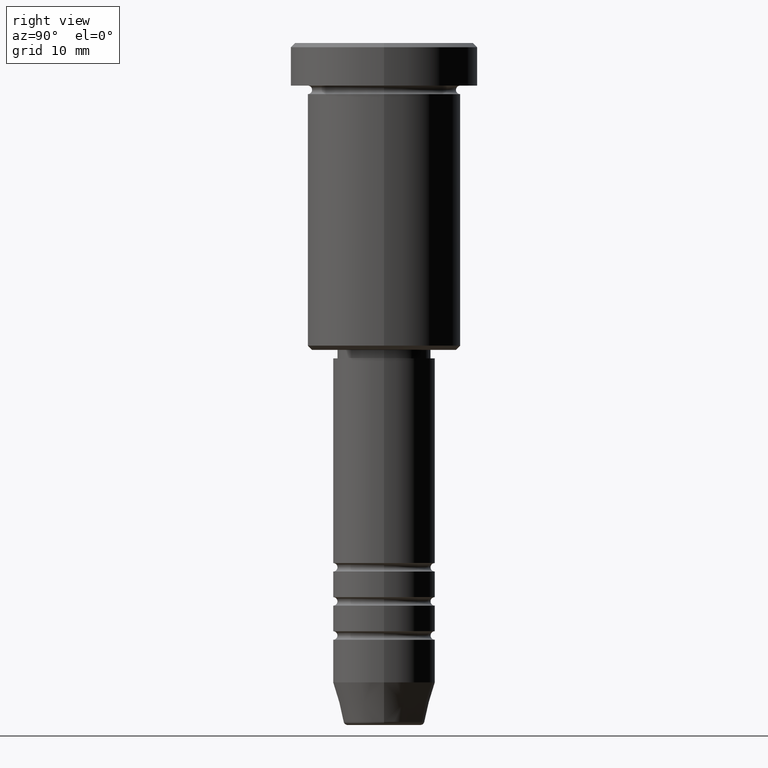
[diagram: clean part render]
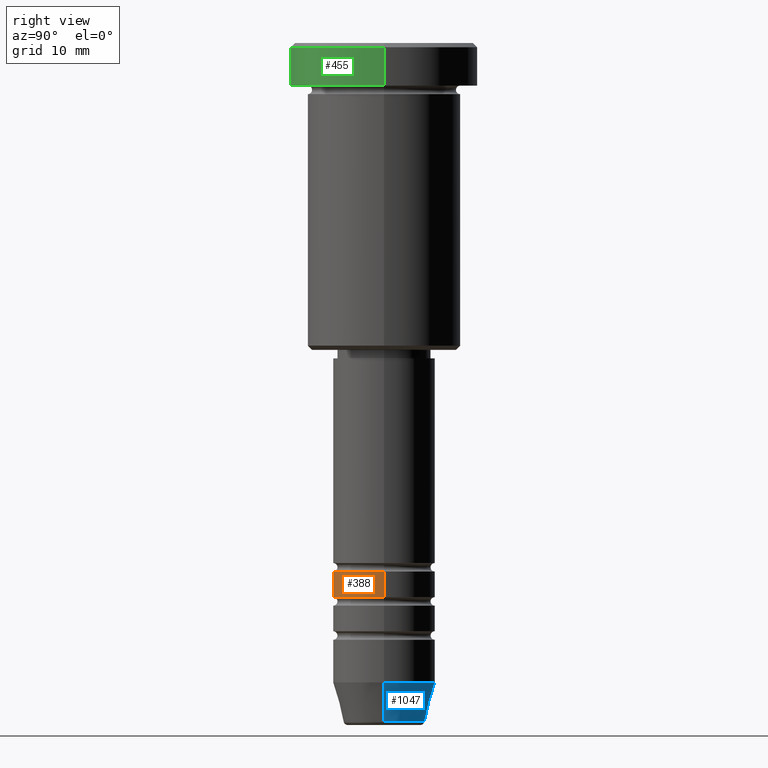
[diagram: same view with three faces highlighted in distinct colors, each labeled with its STEP entity id]
A machine part, right view with three faces highlighted in distinct colors.
Their STEP definitions:

[orange] entity #388 — the highlighted cylindrical surface (partial cylindrical patch) has radius 6 mm, axis along (-0, -0, 1).
#24 = DIRECTION ( 'NONE',  ( 1.000000000000000000, 0.000000000000000000, 0.000000000000000000 ) ) ;
#36 = EDGE_CURVE ( 'NONE', #151, #428, #807, .T. ) ;
#47 = VECTOR ( 'NONE', #271, 1000.000000000000000 ) ;
#66 = VECTOR ( 'NONE', #141, 1000.000000000000000 ) ;
#80 = ORIENTED_EDGE ( 'NONE', *, *, #279, .F. ) ;
#141 = DIRECTION ( 'NONE',  ( -0.000000000000000000, -0.000000000000000000, 1.000000000000000000 ) ) ;
#149 = FACE_OUTER_BOUND ( 'NONE', #413, .T. ) ;
#151 = VERTEX_POINT ( 'NONE', #485 ) ;
#201 = CARTESIAN_POINT ( 'NONE',  ( -6.000000000000001776, 7.347880794884121708E-16, -65.00000000000000000 ) ) ;
#243 = DIRECTION ( 'NONE',  ( -0.000000000000000000, -0.000000000000000000, 1.000000000000000000 ) ) ;
#271 = DIRECTION ( 'NONE',  ( -0.000000000000000000, -0.000000000000000000, 1.000000000000000000 ) ) ;
#276 = CARTESIAN_POINT ( 'NONE',  ( 6.000000000000000000, 0.000000000000000000, 0.000000000000000000 ) ) ;
#279 = EDGE_CURVE ( 'NONE', #1032, #151, #424, .T. ) ;
#309 = CARTESIAN_POINT ( 'NONE',  ( -6.000000000000000000, 7.347880794884119736E-16, 0.000000000000000000 ) ) ;
#310 = CARTESIAN_POINT ( 'NONE',  ( 0.000000000000000000, 0.000000000000000000, -62.00000000000000711 ) ) ;
#337 = CIRCLE ( 'NONE', #637, 6.000000000000001776 ) ;
#358 = CARTESIAN_POINT ( 'NONE',  ( 0.000000000000000000, 0.000000000000000000, -65.00000000000000000 ) ) ;
#388 = ADVANCED_FACE ( 'NONE', ( #149 ), #694, .T. ) ;
#413 = EDGE_LOOP ( 'NONE', ( #80, #789, #736, #783 ) ) ;
#424 = LINE ( 'NONE', #309, #66 ) ;
#428 = VERTEX_POINT ( 'NONE', #602 ) ;
#443 = EDGE_CURVE ( 'NONE', #1032, #645, #337, .T. ) ;
#458 = LINE ( 'NONE', #276, #47 ) ;
#485 = CARTESIAN_POINT ( 'NONE',  ( -5.999999999999999112, 7.347880794884118750E-16, -62.00000000000000711 ) ) ;
#602 = CARTESIAN_POINT ( 'NONE',  ( 5.999999999999999112, 0.000000000000000000, -62.00000000000000711 ) ) ;
#627 = DIRECTION ( 'NONE',  ( -0.000000000000000000, -0.000000000000000000, 1.000000000000000000 ) ) ;
#637 = AXIS2_PLACEMENT_3D ( 'NONE', #358, #627, #787 ) ;
#645 = VERTEX_POINT ( 'NONE', #824 ) ;
#694 = CYLINDRICAL_SURFACE ( 'NONE', #716, 6.000000000000000000 ) ;
#709 = CARTESIAN_POINT ( 'NONE',  ( 0.000000000000000000, 0.000000000000000000, 0.000000000000000000 ) ) ;
#716 = AXIS2_PLACEMENT_3D ( 'NONE', #709, #243, #974 ) ;
#736 = ORIENTED_EDGE ( 'NONE', *, *, #1038, .T. ) ;
#749 = AXIS2_PLACEMENT_3D ( 'NONE', #310, #938, #24 ) ;
#783 = ORIENTED_EDGE ( 'NONE', *, *, #36, .F. ) ;
#787 = DIRECTION ( 'NONE',  ( 1.000000000000000000, 0.000000000000000000, 0.000000000000000000 ) ) ;
#789 = ORIENTED_EDGE ( 'NONE', *, *, #443, .T. ) ;
#807 = CIRCLE ( 'NONE', #749, 5.999999999999999112 ) ;
#824 = CARTESIAN_POINT ( 'NONE',  ( 6.000000000000001776, 0.000000000000000000, -65.00000000000000000 ) ) ;
#938 = DIRECTION ( 'NONE',  ( -0.000000000000000000, -0.000000000000000000, 1.000000000000000000 ) ) ;
#974 = DIRECTION ( 'NONE',  ( 1.000000000000000000, 0.000000000000000000, 0.000000000000000000 ) ) ;
#1032 = VERTEX_POINT ( 'NONE', #201 ) ;
#1038 = EDGE_CURVE ( 'NONE', #645, #428, #458, .T. ) ;

[blue] entity #1047 — the highlighted conical surface has half-angle 15 deg.
#38 = DIRECTION ( 'NONE',  ( -0.2588190451025213501, 3.169619151431772337E-17, 0.9659258262890680902 ) ) ;
#43 = CARTESIAN_POINT ( 'NONE',  ( 6.000000000000000000, 0.000000000000000000, -75.00000000000001421 ) ) ;
#45 = VECTOR ( 'NONE', #38, 1000.000000000000000 ) ;
#76 = EDGE_LOOP ( 'NONE', ( #1053, #599, #335, #1016 ) ) ;
#87 = CONICAL_SURFACE ( 'NONE', #928, 6.000000000000000000, 0.2617993877991500740 ) ;
#125 = CARTESIAN_POINT ( 'NONE',  ( -6.000000000000000000, 7.347880794884119736E-16, -75.00000000000001421 ) ) ;
#143 = VERTEX_POINT ( 'NONE', #125 ) ;
#223 = CARTESIAN_POINT ( 'NONE',  ( 0.000000000000000000, 0.000000000000000000, -75.00000000000001421 ) ) ;
#233 = DIRECTION ( 'NONE',  ( -0.000000000000000000, -0.000000000000000000, 1.000000000000000000 ) ) ;
#250 = VERTEX_POINT ( 'NONE', #43 ) ;
#254 = VERTEX_POINT ( 'NONE', #1040 ) ;
#318 = EDGE_CURVE ( 'NONE', #254, #250, #859, .T. ) ;
#335 = ORIENTED_EDGE ( 'NONE', *, *, #780, .F. ) ;
#374 = EDGE_CURVE ( 'NONE', #535, #143, #483, .T. ) ;
#382 = DIRECTION ( 'NONE',  ( 1.000000000000000000, 0.000000000000000000, 0.000000000000000000 ) ) ;
#399 = CARTESIAN_POINT ( 'NONE',  ( -6.000000000000000000, 7.347880794884119736E-16, -75.00000000000001421 ) ) ;
#434 = CIRCLE ( 'NONE', #585, 6.000000000000000000 ) ;
#483 = LINE ( 'NONE', #399, #45 ) ;
#528 = EDGE_CURVE ( 'NONE', #254, #535, #964, .T. ) ;
#535 = VERTEX_POINT ( 'NONE', #968 ) ;
#585 = AXIS2_PLACEMENT_3D ( 'NONE', #223, #233, #1126 ) ;
#595 = CARTESIAN_POINT ( 'NONE',  ( 6.000000000000000000, 0.000000000000000000, -75.00000000000001421 ) ) ;
#599 = ORIENTED_EDGE ( 'NONE', *, *, #374, .T. ) ;
#622 = VECTOR ( 'NONE', #868, 1000.000000000000000 ) ;
#650 = DIRECTION ( 'NONE',  ( -0.000000000000000000, -0.000000000000000000, 1.000000000000000000 ) ) ;
#688 = CARTESIAN_POINT ( 'NONE',  ( 0.000000000000000000, 0.000000000000000000, -79.62940952255127058 ) ) ;
#780 = EDGE_CURVE ( 'NONE', #250, #143, #434, .T. ) ;
#795 = DIRECTION ( 'NONE',  ( -0.000000000000000000, -0.000000000000000000, 1.000000000000000000 ) ) ;
#859 = LINE ( 'NONE', #595, #622 ) ;
#868 = DIRECTION ( 'NONE',  ( 0.2588190451025213501, 0.000000000000000000, 0.9659258262890680902 ) ) ;
#928 = AXIS2_PLACEMENT_3D ( 'NONE', #1171, #650, #382 ) ;
#964 = CIRCLE ( 'NONE', #1112, 4.759553456999440435 ) ;
#968 = CARTESIAN_POINT ( 'NONE',  ( -4.759553456999440435, 6.588326350684603250E-16, -79.62940952255127058 ) ) ;
#1016 = ORIENTED_EDGE ( 'NONE', *, *, #318, .F. ) ;
#1040 = CARTESIAN_POINT ( 'NONE',  ( 4.759553456999440435, 0.000000000000000000, -79.62940952255127058 ) ) ;
#1047 = ADVANCED_FACE ( 'NONE', ( #1101 ), #87, .T. ) ;
#1053 = ORIENTED_EDGE ( 'NONE', *, *, #528, .T. ) ;
#1101 = FACE_OUTER_BOUND ( 'NONE', #76, .T. ) ;
#1112 = AXIS2_PLACEMENT_3D ( 'NONE', #688, #795, #1159 ) ;
#1126 = DIRECTION ( 'NONE',  ( 1.000000000000000000, 0.000000000000000000, 0.000000000000000000 ) ) ;
#1159 = DIRECTION ( 'NONE',  ( 1.000000000000000000, 0.000000000000000000, 0.000000000000000000 ) ) ;
#1171 = CARTESIAN_POINT ( 'NONE',  ( 0.000000000000000000, 0.000000000000000000, -75.00000000000001421 ) ) ;

[green] entity #455 — the highlighted cylindrical surface (partial cylindrical patch) has radius 11 mm, axis along (-0, -0, 1).
#35 = DIRECTION ( 'NONE',  ( -0.000000000000000000, -0.000000000000000000, 1.000000000000000000 ) ) ;
#57 = LINE ( 'NONE', #702, #924 ) ;
#138 = CARTESIAN_POINT ( 'NONE',  ( 0.000000000000000000, 0.000000000000000000, -0.5000000000000159872 ) ) ;
#145 = EDGE_CURVE ( 'NONE', #739, #175, #1123, .T. ) ;
#157 = DIRECTION ( 'NONE',  ( -0.000000000000000000, -0.000000000000000000, 1.000000000000000000 ) ) ;
#175 = VERTEX_POINT ( 'NONE', #411 ) ;
#179 = DIRECTION ( 'NONE',  ( -0.000000000000000000, -0.000000000000000000, 1.000000000000000000 ) ) ;
#213 = DIRECTION ( 'NONE',  ( 0.000000000000000000, 0.000000000000000000, -1.000000000000000000 ) ) ;
#266 = VERTEX_POINT ( 'NONE', #773 ) ;
#320 = AXIS2_PLACEMENT_3D ( 'NONE', #138, #213, #501 ) ;
#324 = AXIS2_PLACEMENT_3D ( 'NONE', #1142, #524, #423 ) ;
#345 = FACE_OUTER_BOUND ( 'NONE', #1156, .T. ) ;
#349 = EDGE_CURVE ( 'NONE', #175, #266, #863, .T. ) ;
#411 = CARTESIAN_POINT ( 'NONE',  ( 11.00000000000000178, 0.000000000000000000, -0.5000000000000159872 ) ) ;
#423 = DIRECTION ( 'NONE',  ( 1.000000000000000000, 0.000000000000000000, 0.000000000000000000 ) ) ;
#425 = ORIENTED_EDGE ( 'NONE', *, *, #481, .F. ) ;
#455 = ADVANCED_FACE ( 'NONE', ( #345 ), #1154, .T. ) ;
#481 = EDGE_CURVE ( 'NONE', #1014, #266, #57, .T. ) ;
#501 = DIRECTION ( 'NONE',  ( 1.000000000000000000, 0.000000000000000000, 0.000000000000000000 ) ) ;
#524 = DIRECTION ( 'NONE',  ( -0.000000000000000000, -0.000000000000000000, 1.000000000000000000 ) ) ;
#625 = CIRCLE ( 'NONE', #324, 11.00000000000000000 ) ;
#680 = AXIS2_PLACEMENT_3D ( 'NONE', #1143, #157, #1083 ) ;
#692 = VECTOR ( 'NONE', #35, 1000.000000000000000 ) ;
#702 = CARTESIAN_POINT ( 'NONE',  ( -11.00000000000000178, 1.347111479062088602E-15, 0.000000000000000000 ) ) ;
#739 = VERTEX_POINT ( 'NONE', #1050 ) ;
#773 = CARTESIAN_POINT ( 'NONE',  ( -11.00000000000000178, 1.347111479062088602E-15, -0.5000000000000159872 ) ) ;
#863 = CIRCLE ( 'NONE', #320, 11.00000000000000178 ) ;
#909 = EDGE_CURVE ( 'NONE', #1014, #739, #625, .T. ) ;
#919 = CARTESIAN_POINT ( 'NONE',  ( -11.00000000000000000, 1.347111479062088602E-15, -5.000000000000000000 ) ) ;
#924 = VECTOR ( 'NONE', #179, 1000.000000000000000 ) ;
#952 = ORIENTED_EDGE ( 'NONE', *, *, #145, .T. ) ;
#958 = ORIENTED_EDGE ( 'NONE', *, *, #909, .T. ) ;
#1007 = ORIENTED_EDGE ( 'NONE', *, *, #349, .T. ) ;
#1014 = VERTEX_POINT ( 'NONE', #919 ) ;
#1050 = CARTESIAN_POINT ( 'NONE',  ( 11.00000000000000000, 0.000000000000000000, -5.000000000000000000 ) ) ;
#1083 = DIRECTION ( 'NONE',  ( 1.000000000000000000, 0.000000000000000000, 0.000000000000000000 ) ) ;
#1119 = CARTESIAN_POINT ( 'NONE',  ( 11.00000000000000178, 0.000000000000000000, 0.000000000000000000 ) ) ;
#1123 = LINE ( 'NONE', #1119, #692 ) ;
#1142 = CARTESIAN_POINT ( 'NONE',  ( 0.000000000000000000, 0.000000000000000000, -5.000000000000000000 ) ) ;
#1143 = CARTESIAN_POINT ( 'NONE',  ( 0.000000000000000000, 0.000000000000000000, 0.000000000000000000 ) ) ;
#1154 = CYLINDRICAL_SURFACE ( 'NONE', #680, 11.00000000000000178 ) ;
#1156 = EDGE_LOOP ( 'NONE', ( #425, #958, #952, #1007 ) ) ;